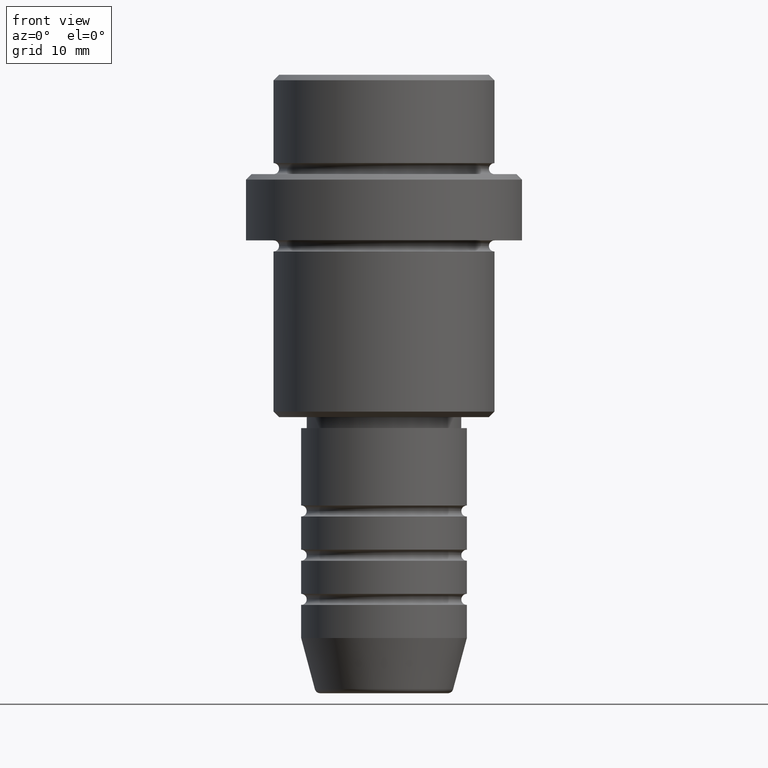
[diagram: clean part render]
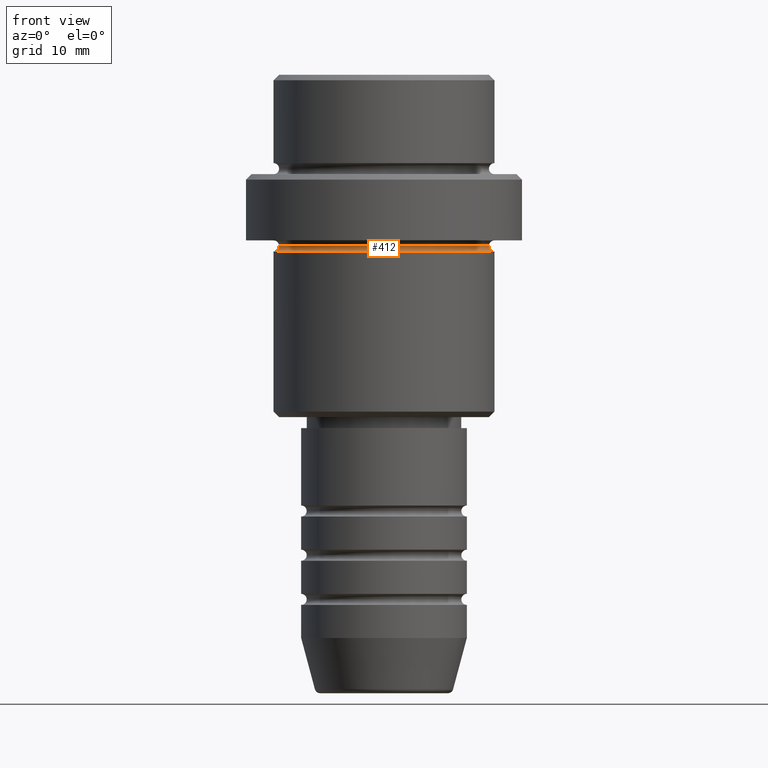
[diagram: same view with one face highlighted and labeled with its STEP entity id]
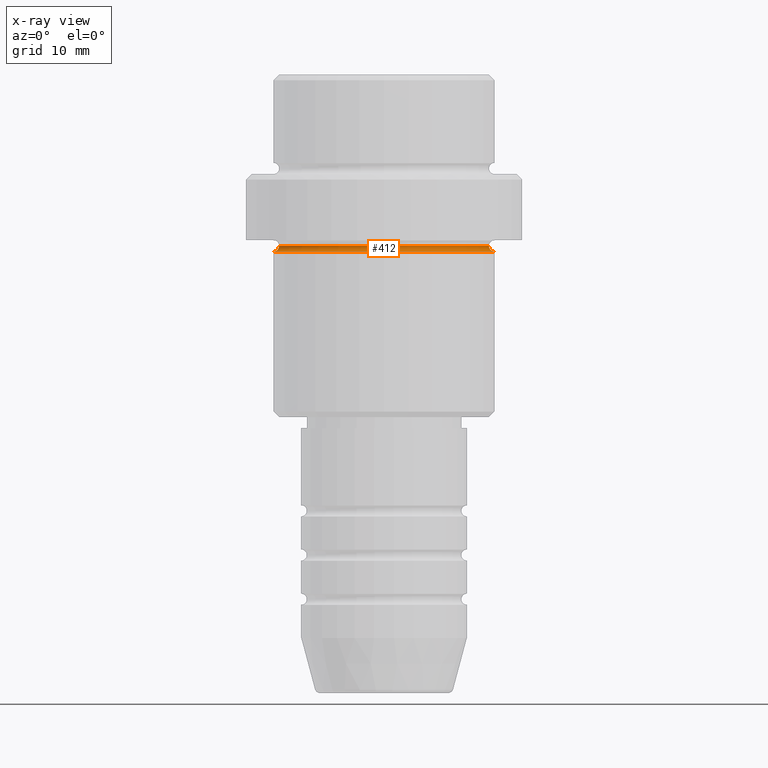
[diagram: x-ray of the same camera — body ghosted, the highlighted face saturated]
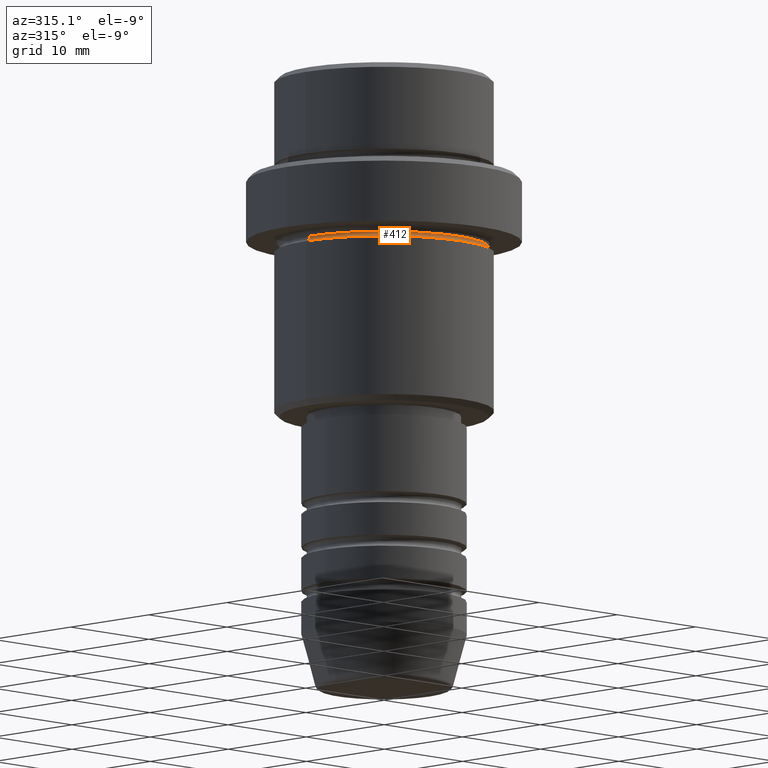
[diagram: same view with one face highlighted and labeled with its STEP entity id]
A machine part, front view. The second image highlights one B-rep face of the part: STEP entity #412.
The next image is the same camera in x-ray: the body ghosted, the highlighted face saturated — about 0% of this face is hidden behind the body in this view.
A second angle (auxiliary view) of the same face is appended — the face is thin or edge-on in the first view.
In plain terms, the highlighted toroidal blend (fillet) surface has major radius 10 mm and minor (blend) radius 0.5 mm.
Its self-contained STEP definition (entity closure, byte-faithful):
#51 = AXIS2_PLACEMENT_3D ( 'NONE', #675, #1153, #462 ) ;
#65 = DIRECTION ( 'NONE',  ( 0.000000000000000000, 0.000000000000000000, -1.000000000000000000 ) ) ;
#83 = CARTESIAN_POINT ( 'NONE',  ( 0.000000000000000000, 0.000000000000000000, -15.50000000000000000 ) ) ;
#88 = ORIENTED_EDGE ( 'NONE', *, *, #629, .T. ) ;
#196 = EDGE_CURVE ( 'NONE', #375, #376, #549, .T. ) ;
#239 = DIRECTION ( 'NONE',  ( -1.000000000000000000, 0.000000000000000000, 0.000000000000000000 ) ) ;
#258 = EDGE_CURVE ( 'NONE', #700, #793, #937, .T. ) ;
#296 = EDGE_LOOP ( 'NONE', ( #929, #299, #88, #997 ) ) ;
#299 = ORIENTED_EDGE ( 'NONE', *, *, #258, .T. ) ;
#375 = VERTEX_POINT ( 'NONE', #1017 ) ;
#376 = VERTEX_POINT ( 'NONE', #809 ) ;
#405 = DIRECTION ( 'NONE',  ( 0.000000000000000000, 0.000000000000000000, -1.000000000000000000 ) ) ;
#412 = ADVANCED_FACE ( 'NONE', ( #746 ), #1314, .F. ) ;
#429 = CARTESIAN_POINT ( 'NONE',  ( 9.999999999999994671, 1.224646799147352665E-15, -15.50000000000000000 ) ) ;
#462 = DIRECTION ( 'NONE',  ( 1.000000000000000000, 0.000000000000000000, 0.000000000000000000 ) ) ;
#469 = CARTESIAN_POINT ( 'NONE',  ( -9.999999999999994671, 0.000000000000000000, -15.50000000000000000 ) ) ;
#490 = DIRECTION ( 'NONE',  ( -0.000000000000000000, -1.000000000000000000, -0.000000000000000000 ) ) ;
#549 = CIRCLE ( 'NONE', #1337, 0.5000000000000004441 ) ;
#620 = CIRCLE ( 'NONE', #1339, 9.499999999999994671 ) ;
#629 = EDGE_CURVE ( 'NONE', #793, #376, #620, .T. ) ;
#641 = AXIS2_PLACEMENT_3D ( 'NONE', #429, #745, #785 ) ;
#675 = CARTESIAN_POINT ( 'NONE',  ( 0.000000000000000000, 0.000000000000000000, -16.00000000000000000 ) ) ;
#679 = AXIS2_PLACEMENT_3D ( 'NONE', #1381, #1193, #958 ) ;
#682 = CIRCLE ( 'NONE', #51, 10.00000000000000000 ) ;
#700 = VERTEX_POINT ( 'NONE', #1143 ) ;
#735 = EDGE_CURVE ( 'NONE', #375, #700, #682, .T. ) ;
#745 = DIRECTION ( 'NONE',  ( -1.224646799147353207E-16, 1.000000000000000000, 0.000000000000000000 ) ) ;
#746 = FACE_OUTER_BOUND ( 'NONE', #296, .T. ) ;
#785 = DIRECTION ( 'NONE',  ( -1.000000000000000000, -1.224646799147353454E-16, 0.000000000000000000 ) ) ;
#793 = VERTEX_POINT ( 'NONE', #1376 ) ;
#809 = CARTESIAN_POINT ( 'NONE',  ( -9.499999999999994671, 0.000000000000000000, -15.50000000000000000 ) ) ;
#929 = ORIENTED_EDGE ( 'NONE', *, *, #735, .T. ) ;
#937 = CIRCLE ( 'NONE', #641, 0.5000000000000004441 ) ;
#958 = DIRECTION ( 'NONE',  ( -1.000000000000000000, 0.000000000000000000, 0.000000000000000000 ) ) ;
#997 = ORIENTED_EDGE ( 'NONE', *, *, #196, .F. ) ;
#1017 = CARTESIAN_POINT ( 'NONE',  ( -10.00000000000000000, 1.224646799147353256E-15, -16.00000000000000000 ) ) ;
#1143 = CARTESIAN_POINT ( 'NONE',  ( 10.00000000000000000, 0.000000000000000000, -16.00000000000000000 ) ) ;
#1153 = DIRECTION ( 'NONE',  ( -0.000000000000000000, -0.000000000000000000, 1.000000000000000000 ) ) ;
#1193 = DIRECTION ( 'NONE',  ( 0.000000000000000000, 0.000000000000000000, -1.000000000000000000 ) ) ;
#1314 = TOROIDAL_SURFACE ( 'NONE', #679, 9.999999999999994671, 0.5000000000000000000 ) ;
#1337 = AXIS2_PLACEMENT_3D ( 'NONE', #469, #490, #65 ) ;
#1339 = AXIS2_PLACEMENT_3D ( 'NONE', #83, #405, #239 ) ;
#1376 = CARTESIAN_POINT ( 'NONE',  ( 9.499999999999994671, 1.194030629168668681E-15, -15.50000000000000000 ) ) ;
#1381 = CARTESIAN_POINT ( 'NONE',  ( 0.000000000000000000, 0.000000000000000000, -15.50000000000000000 ) ) ;